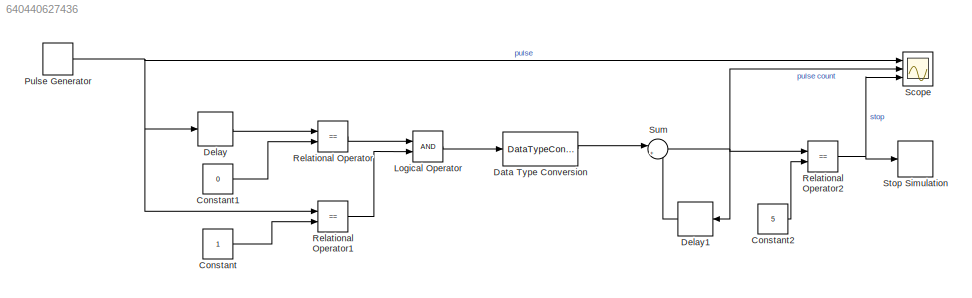
MODEL slx_640440627436
KIND model
BLOCK [Constant] Constant
BLOCK [Constant] Constant1
  Value = 0
BLOCK [Constant] Constant2
  Value = 5
BLOCK [DataTypeConversion] Data Type Conversion
  OutDataTypeStr = double
  RndMeth = Floor
  SaturateOnIntegerOverflow = off
BLOCK [Delay] Delay
  DelayLength = 1
  InitialCondition = 0
  InputPortMap = u0
  Ports = [1, 1]
BLOCK [Delay] Delay1
  DelayLength = 1
  InitialCondition = 0
  InputPortMap = u0
  Ports = [1, 1]
BLOCK [Logic] Logical Operator
  AllPortsSameDT = off
  OutDataTypeStr = boolean
  Ports = [2, 1]
BLOCK [DiscretePulseGenerator] Pulse Generator
  PhaseDelay = 0.2
  Ports = [0, 1]
  PulseType = Time based
  PulseWidth = 50
BLOCK [RelationalOperator] Relational Operator
  InputSameDT = off
  Operator = ==
  OutDataTypeStr = boolean
  Ports = [2, 1]
BLOCK [RelationalOperator] Relational Operator1
  InputSameDT = off
  Operator = ==
  OutDataTypeStr = boolean
  Ports = [2, 1]
BLOCK [RelationalOperator] Relational Operator2
  InputSameDT = off
  Operator = ==
  OutDataTypeStr = boolean
  Ports = [2, 1]
BLOCK [Scope] Scope
  DataFormat = StructureWithTime
  Floating = off
  NumInputPorts = 3
  Ports = [3]
  SampleTime = 0
  ShowLegends = off
  YMax = 5~5~5
  YMin = -5~-5~-5
BLOCK [Stop] Stop Simulation
BLOCK [Sum] Sum
  IconShape = round
  InputSameDT = off
  Inputs = |++
  OutDataTypeStr = Inherit: Inherit via internal rule
  Ports = [2, 1]
  SaturateOnIntegerOverflow = off
LINE Constant1:1 -> Relational Operator:2
LINE Constant2:1 -> Relational Operator2:2
LINE Constant:1 -> Relational Operator1:2
LINE Data Type Conversion:1 -> Sum:1
LINE Delay1:1 -> Sum:2
LINE Delay:1 -> Relational Operator:1
LINE Logical Operator:1 -> Data Type Conversion:1
NET Pulse Generator:1 -> Delay:1, Relational Operator1:1, Scope:1
LINE Relational Operator1:1 -> Logical Operator:2
NET Relational Operator2:1 -> Scope:3, Stop Simulation:1
LINE Relational Operator:1 -> Logical Operator:1
NET Sum:1 -> Delay1:1, Relational Operator2:1, Scope:2
note: NET lines group one-source signal fan-out (src -> all destinations, sorted); 1:1 wires keep LINE
